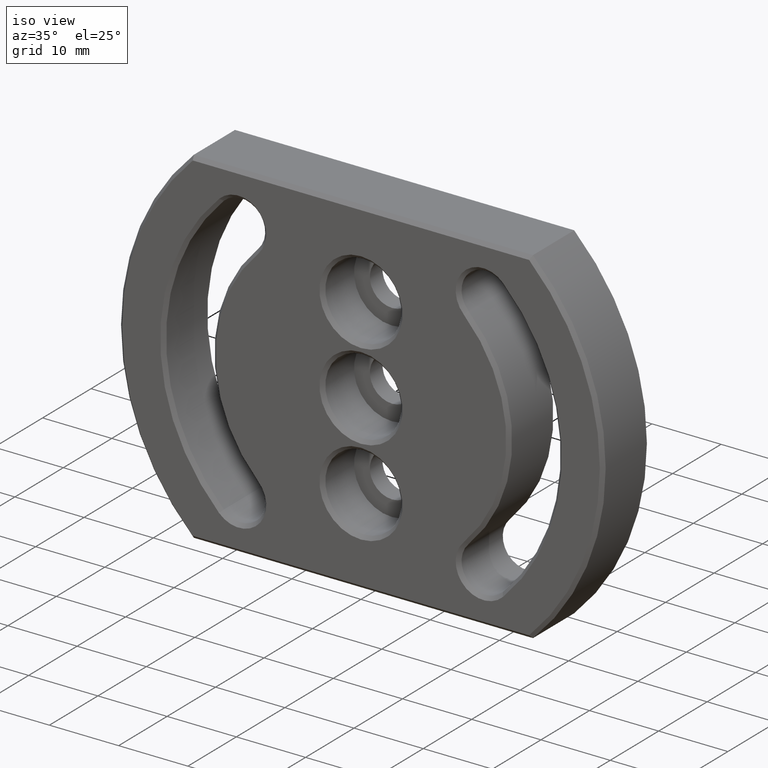
[diagram: clean part render]
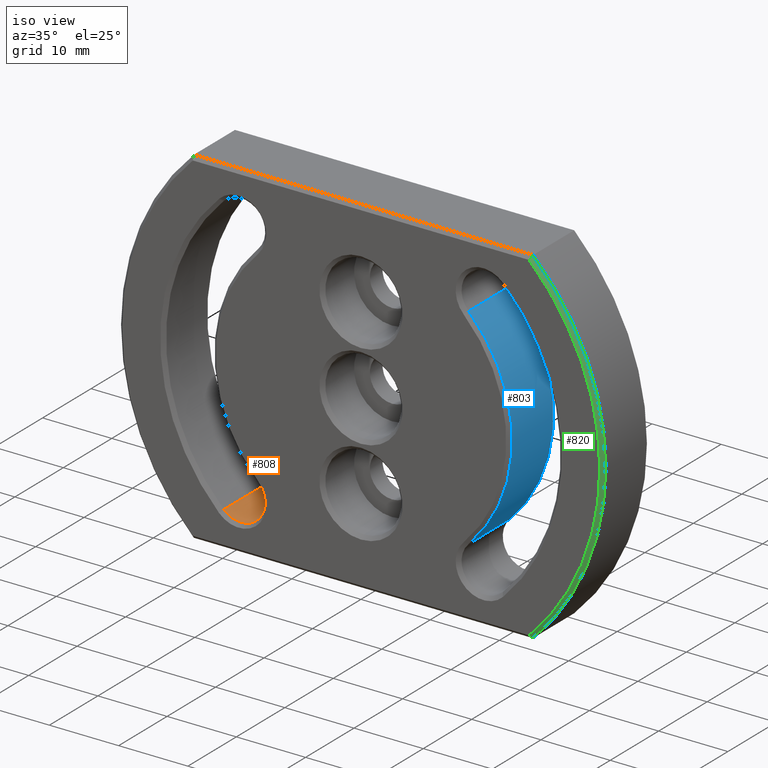
[diagram: same view with three faces highlighted in distinct colors, each labeled with its STEP entity id]
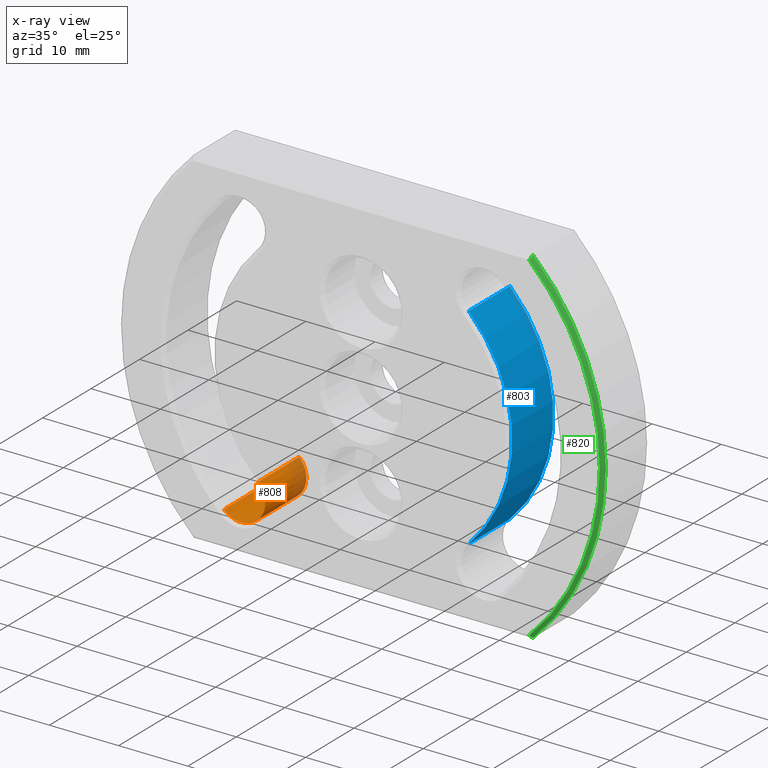
[diagram: x-ray of the same camera — body ghosted, the three highlighted faces saturated]
A machine part, iso view with three faces highlighted in distinct colors.
The next image is the same camera in x-ray (body ghosted, the three faces saturated) — at least one of them is partly hidden behind the body in this view.
Their STEP definitions:

[orange] entity #808 — the highlighted cylindrical surface (edge-blend (fillet) strip) has radius 3.5 mm, axis along (-0, 1, -0).
#51 = DIRECTION ( 'NONE',  ( 0.0000000000000000000, 1.000000000000000000, 0.0000000000000000000 ) ) ;
#81 = DIRECTION ( 'NONE',  ( -0.0000000000000000000, 1.000000000000000000, -0.0000000000000000000 ) ) ;
#86 = CARTESIAN_POINT ( 'NONE',  ( -20.15254326381670000, 8.999999999999987600, -20.15254326381650800 ) ) ;
#88 = DIRECTION ( 'NONE',  ( 0.0000000000000000000, 0.0000000000000000000, 1.000000000000000000 ) ) ;
#119 = CARTESIAN_POINT ( 'NONE',  ( -20.15254326381670000, 0.5000000000000108800, -20.15254326381650800 ) ) ;
#145 = CARTESIAN_POINT ( 'NONE',  ( -20.15254326381670000, -0.0009999999999992653700, -20.15254326381650800 ) ) ;
#199 = CARTESIAN_POINT ( 'NONE',  ( -17.67766952966378500, 8.999999999999987600, -17.67766952966358600 ) ) ;
#238 = DIRECTION ( 'NONE',  ( 0.0000000000000000000, -1.000000000000000000, 0.0000000000000000000 ) ) ;
#331 = CARTESIAN_POINT ( 'NONE',  ( -15.20279579551088400, 8.999999999999987600, -15.20279579551068700 ) ) ;
#332 = DIRECTION ( 'NONE',  ( 0.0000000000000000000, 0.0000000000000000000, 1.000000000000000000 ) ) ;
#356 = CARTESIAN_POINT ( 'NONE',  ( -17.67766952966378500, 0.5000000000000108800, -17.67766952966358600 ) ) ;
#373 = DIRECTION ( 'NONE',  ( -0.0000000000000000000, 1.000000000000000000, -0.0000000000000000000 ) ) ;
#388 = DIRECTION ( 'NONE',  ( 0.0000000000000000000, 0.0000000000000000000, 1.000000000000000000 ) ) ;
#393 = CARTESIAN_POINT ( 'NONE',  ( -17.67766952966378500, -0.0009999999999992653700, -17.67766952966358600 ) ) ;
#497 = DIRECTION ( 'NONE',  ( -0.0000000000000000000, 1.000000000000000000, -0.0000000000000000000 ) ) ;
#507 = CARTESIAN_POINT ( 'NONE',  ( -15.20279579551088400, -0.0009999999999992653700, -15.20279579551068700 ) ) ;
#510 = CARTESIAN_POINT ( 'NONE',  ( -15.20279579551088400, 0.5000000000000108800, -15.20279579551068700 ) ) ;
#569 = EDGE_CURVE ( 'NONE', #1178, #931, #849, .T. ) ;
#584 = AXIS2_PLACEMENT_3D ( 'NONE', #356, #238, #388 ) ;
#594 = EDGE_CURVE ( 'NONE', #1178, #1172, #1355, .T. ) ;
#657 = AXIS2_PLACEMENT_3D ( 'NONE', #393, #373, #88 ) ;
#707 = EDGE_CURVE ( 'NONE', #1177, #1172, #885, .T. ) ;
#723 = AXIS2_PLACEMENT_3D ( 'NONE', #199, #51, #332 ) ;
#766 = EDGE_CURVE ( 'NONE', #931, #1177, #876, .T. ) ;
#808 = ADVANCED_FACE ( 'NONE', ( #962 ), #965, .F. ) ;
#849 = CIRCLE ( 'NONE', #584, 3.500000000000003100 ) ;
#875 = ORIENTED_EDGE ( 'NONE', *, *, #594, .F. ) ;
#876 = LINE ( 'NONE', #507, #914 ) ;
#885 = CIRCLE ( 'NONE', #723, 3.500000000000003100 ) ;
#914 = VECTOR ( 'NONE', #497, 1000.000000000000000 ) ;
#931 = VERTEX_POINT ( 'NONE', #510 ) ;
#962 = FACE_OUTER_BOUND ( 'NONE', #1111, .T. ) ;
#965 = CYLINDRICAL_SURFACE ( 'NONE', #657, 3.500000000000003100 ) ;
#1111 = EDGE_LOOP ( 'NONE', ( #875, #1232, #1447, #1224 ) ) ;
#1172 = VERTEX_POINT ( 'NONE', #86 ) ;
#1177 = VERTEX_POINT ( 'NONE', #331 ) ;
#1178 = VERTEX_POINT ( 'NONE', #119 ) ;
#1195 = VECTOR ( 'NONE', #81, 1000.000000000000000 ) ;
#1224 = ORIENTED_EDGE ( 'NONE', *, *, #707, .T. ) ;
#1232 = ORIENTED_EDGE ( 'NONE', *, *, #569, .T. ) ;
#1355 = LINE ( 'NONE', #145, #1195 ) ;
#1447 = ORIENTED_EDGE ( 'NONE', *, *, #766, .T. ) ;

[blue] entity #803 — the highlighted cylindrical surface (partial cylindrical patch) has radius 21.5 mm, axis along (-0, 1, -0).
#4 = CARTESIAN_POINT ( 'NONE',  ( 15.20279579551087500, 0.4999999999999903400, -15.20279579551066400 ) ) ;
#22 = DIRECTION ( 'NONE',  ( -8.881784197001252300E-016, 0.0000000000000000000, 1.000000000000000000 ) ) ;
#64 = CARTESIAN_POINT ( 'NONE',  ( 15.20279579551071200, 0.4999999999999904500, 15.20279579551083600 ) ) ;
#126 = DIRECTION ( 'NONE',  ( -0.0000000000000000000, 1.000000000000000000, -0.0000000000000000000 ) ) ;
#159 = DIRECTION ( 'NONE',  ( -0.0000000000000000000, -1.000000000000000000, -0.0000000000000000000 ) ) ;
#160 = CARTESIAN_POINT ( 'NONE',  ( 0.0000000000000000000, 8.999999999999985800, 0.0000000000000000000 ) ) ;
#214 = DIRECTION ( 'NONE',  ( 0.0000000000000000000, 0.0000000000000000000, 1.000000000000000000 ) ) ;
#223 = CARTESIAN_POINT ( 'NONE',  ( 15.20279579551071200, 8.999999999999985800, 15.20279579551083600 ) ) ;
#327 = DIRECTION ( 'NONE',  ( -0.0000000000000000000, 1.000000000000000000, -0.0000000000000000000 ) ) ;
#350 = CARTESIAN_POINT ( 'NONE',  ( 0.0000000000000000000, 0.4999999999999904500, 0.0000000000000000000 ) ) ;
#450 = CARTESIAN_POINT ( 'NONE',  ( 0.0000000000000000000, -0.0009999999999992653700, 0.0000000000000000000 ) ) ;
#470 = CARTESIAN_POINT ( 'NONE',  ( 15.20279579551087500, 8.999999999999985800, -15.20279579551066400 ) ) ;
#480 = DIRECTION ( 'NONE',  ( -0.0000000000000000000, 1.000000000000000000, -0.0000000000000000000 ) ) ;
#492 = CARTESIAN_POINT ( 'NONE',  ( 15.20279579551087500, -0.0009999999999992653700, -15.20279579551066400 ) ) ;
#502 = DIRECTION ( 'NONE',  ( 0.0000000000000000000, 0.0000000000000000000, 1.000000000000000000 ) ) ;
#523 = DIRECTION ( 'NONE',  ( -0.0000000000000000000, 1.000000000000000000, -0.0000000000000000000 ) ) ;
#539 = CARTESIAN_POINT ( 'NONE',  ( 15.20279579551071200, -0.0009999999999992653700, 15.20279579551083600 ) ) ;
#566 = EDGE_CURVE ( 'NONE', #948, #1057, #951, .T. ) ;
#588 = AXIS2_PLACEMENT_3D ( 'NONE', #350, #327, #214 ) ;
#603 = EDGE_CURVE ( 'NONE', #1057, #1218, #1327, .T. ) ;
#604 = EDGE_CURVE ( 'NONE', #1218, #945, #1321, .T. ) ;
#648 = AXIS2_PLACEMENT_3D ( 'NONE', #450, #523, #502 ) ;
#684 = AXIS2_PLACEMENT_3D ( 'NONE', #160, #159, #22 ) ;
#772 = EDGE_CURVE ( 'NONE', #948, #945, #881, .T. ) ;
#803 = ADVANCED_FACE ( 'NONE', ( #958 ), #1300, .T. ) ;
#881 = LINE ( 'NONE', #539, #1115 ) ;
#940 = ORIENTED_EDGE ( 'NONE', *, *, #772, .F. ) ;
#945 = VERTEX_POINT ( 'NONE', #223 ) ;
#948 = VERTEX_POINT ( 'NONE', #64 ) ;
#951 = CIRCLE ( 'NONE', #588, 21.50000000000000000 ) ;
#958 = FACE_OUTER_BOUND ( 'NONE', #1140, .T. ) ;
#1057 = VERTEX_POINT ( 'NONE', #4 ) ;
#1115 = VECTOR ( 'NONE', #126, 1000.000000000000000 ) ;
#1140 = EDGE_LOOP ( 'NONE', ( #940, #1307, #1306, #1248 ) ) ;
#1218 = VERTEX_POINT ( 'NONE', #470 ) ;
#1248 = ORIENTED_EDGE ( 'NONE', *, *, #604, .T. ) ;
#1300 = CYLINDRICAL_SURFACE ( 'NONE', #648, 21.50000000000000000 ) ;
#1306 = ORIENTED_EDGE ( 'NONE', *, *, #603, .T. ) ;
#1307 = ORIENTED_EDGE ( 'NONE', *, *, #566, .T. ) ;
#1321 = CIRCLE ( 'NONE', #684, 21.50000000000000000 ) ;
#1327 = LINE ( 'NONE', #492, #1349 ) ;
#1349 = VECTOR ( 'NONE', #480, 1000.000000000000000 ) ;

[green] entity #820 — the highlighted conical surface has half-angle 45 deg.
#7 = CARTESIAN_POINT ( 'NONE',  ( 24.49489742783177700, 0.4999999999999865700, 24.99999999999999600 ) ) ;
#53 = CARTESIAN_POINT ( 'NONE',  ( 24.35850870352451700, 0.1666120623118608500, 24.66661206231187400 ) ) ;
#105 = CARTESIAN_POINT ( 'NONE',  ( 0.0000000000000000000, 0.0000000000000000000, 0.0000000000000000000 ) ) ;
#130 = CARTESIAN_POINT ( 'NONE',  ( 24.28991560298224400, 0.0000000000000000000, -24.50000000000001800 ) ) ;
#162 = CARTESIAN_POINT ( 'NONE',  ( 0.0000000000000000000, 0.4999999999999865700, 0.0000000000000000000 ) ) ;
#190 = CARTESIAN_POINT ( 'NONE',  ( 24.49489742783177700, 0.4999999999999865700, 24.99999999999999600 ) ) ;
#195 = DIRECTION ( 'NONE',  ( -0.0000000000000000000, 1.000000000000000000, -0.0000000000000000000 ) ) ;
#241 = CARTESIAN_POINT ( 'NONE',  ( 24.42683401166848600, 0.3332793602492256600, -24.83327936024924700 ) ) ;
#302 = CARTESIAN_POINT ( 'NONE',  ( 24.35850870352451700, 0.1666120623118602700, -24.66661206231188100 ) ) ;
#312 = CARTESIAN_POINT ( 'NONE',  ( 24.28991560298224400, 0.0000000000000000000, -24.50000000000001800 ) ) ;
#334 = CARTESIAN_POINT ( 'NONE',  ( 24.49489742783177700, 0.4999999999999865700, -25.00000000000000700 ) ) ;
#343 = CARTESIAN_POINT ( 'NONE',  ( 24.28991560298225100, 0.0000000000000000000, 24.50000000000000700 ) ) ;
#354 = DIRECTION ( 'NONE',  ( 0.0000000000000000000, 0.0000000000000000000, 1.000000000000000000 ) ) ;
#383 = CARTESIAN_POINT ( 'NONE',  ( 24.49489742783177700, 0.4999999999999865700, -25.00000000000000700 ) ) ;
#415 = DIRECTION ( 'NONE',  ( 8.881784197001252300E-016, 0.0000000000000000000, 1.000000000000000000 ) ) ;
#452 = DIRECTION ( 'NONE',  ( -0.0000000000000000000, 1.000000000000000000, -0.0000000000000000000 ) ) ;
#453 = CARTESIAN_POINT ( 'NONE',  ( 0.0000000000000000000, 0.4999999999999865700, 0.0000000000000000000 ) ) ;
#472 = DIRECTION ( 'NONE',  ( 0.0000000000000000000, 0.0000000000000000000, 1.000000000000000000 ) ) ;
#479 = CARTESIAN_POINT ( 'NONE',  ( 24.28991560298225100, 0.0000000000000000000, 24.50000000000000700 ) ) ;
#484 = DIRECTION ( 'NONE',  ( -0.0000000000000000000, -1.000000000000000000, -0.0000000000000000000 ) ) ;
#504 = CARTESIAN_POINT ( 'NONE',  ( 24.42683401166848600, 0.3332793602492246700, 24.83327936024923600 ) ) ;
#547 = EDGE_CURVE ( 'NONE', #1040, #1168, #1472, .T. ) ;
#580 = EDGE_CURVE ( 'NONE', #1221, #1040, #917, .T. ) ;
#598 = EDGE_CURVE ( 'NONE', #1221, #1222, #1469, .T. ) ;
#668 = AXIS2_PLACEMENT_3D ( 'NONE', #162, #195, #354 ) ;
#702 = EDGE_CURVE ( 'NONE', #1168, #1222, #1317, .T. ) ;
#714 = AXIS2_PLACEMENT_3D ( 'NONE', #453, #452, #472 ) ;
#722 = AXIS2_PLACEMENT_3D ( 'NONE', #105, #484, #415 ) ;
#820 = ADVANCED_FACE ( 'NONE', ( #1003 ), #1009, .T. ) ;
#868 = ORIENTED_EDGE ( 'NONE', *, *, #702, .F. ) ;
#917 = CIRCLE ( 'NONE', #714, 35.00000000000000000 ) ;
#1003 = FACE_OUTER_BOUND ( 'NONE', #1090, .T. ) ;
#1009 = CONICAL_SURFACE ( 'NONE', #668, 35.00000000000000000, 0.7853981633974482800 ) ;
#1040 = VERTEX_POINT ( 'NONE', #383 ) ;
#1090 = EDGE_LOOP ( 'NONE', ( #1276, #868, #1261, #1220 ) ) ;
#1168 = VERTEX_POINT ( 'NONE', #130 ) ;
#1220 = ORIENTED_EDGE ( 'NONE', *, *, #580, .F. ) ;
#1221 = VERTEX_POINT ( 'NONE', #7 ) ;
#1222 = VERTEX_POINT ( 'NONE', #343 ) ;
#1261 = ORIENTED_EDGE ( 'NONE', *, *, #547, .F. ) ;
#1276 = ORIENTED_EDGE ( 'NONE', *, *, #598, .T. ) ;
#1317 = CIRCLE ( 'NONE', #722, 34.50000000000001400 ) ;
#1469 = B_SPLINE_CURVE_WITH_KNOTS ( 'NONE', 3,
 ( #190, #504, #53, #479 ),
 .UNSPECIFIED., .F., .F.,
 ( 4, 4 ),
 ( 0.0000000000000000000, 0.0007362184108799616400 ),
 .UNSPECIFIED. ) ;
#1472 = B_SPLINE_CURVE_WITH_KNOTS ( 'NONE', 3,
 ( #334, #241, #302, #312 ),
 .UNSPECIFIED., .F., .F.,
 ( 4, 4 ),
 ( 0.0000000000000000000, 0.0007362184108799637000 ),
 .UNSPECIFIED. ) ;